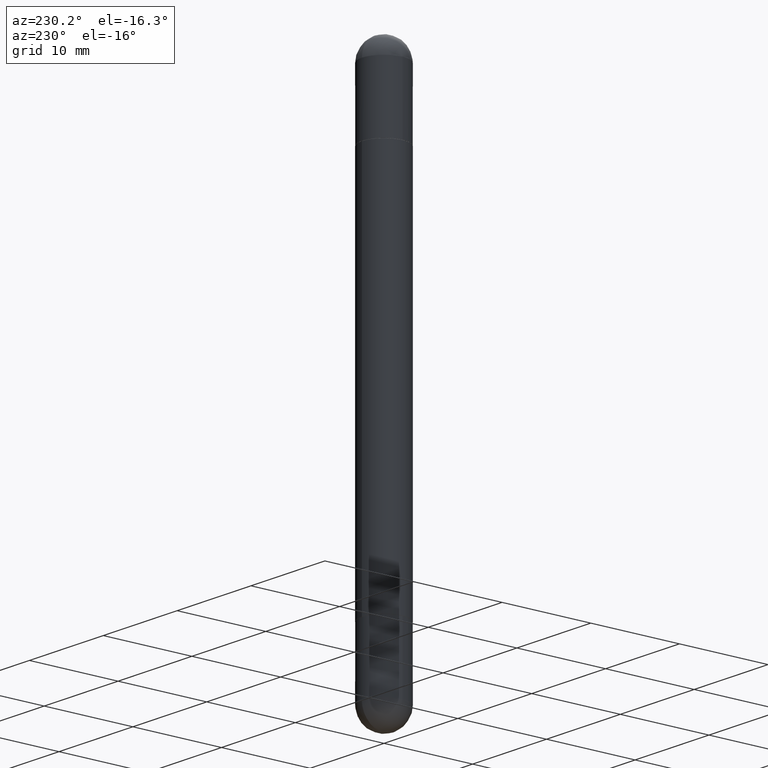
[diagram: clean part render]
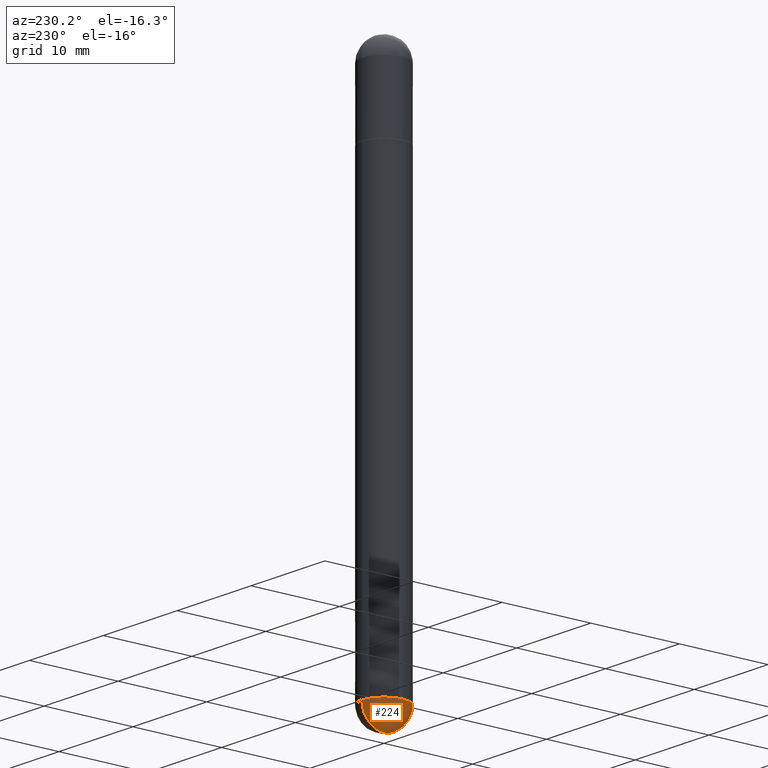
[diagram: same view with one face highlighted and labeled with its STEP entity id]
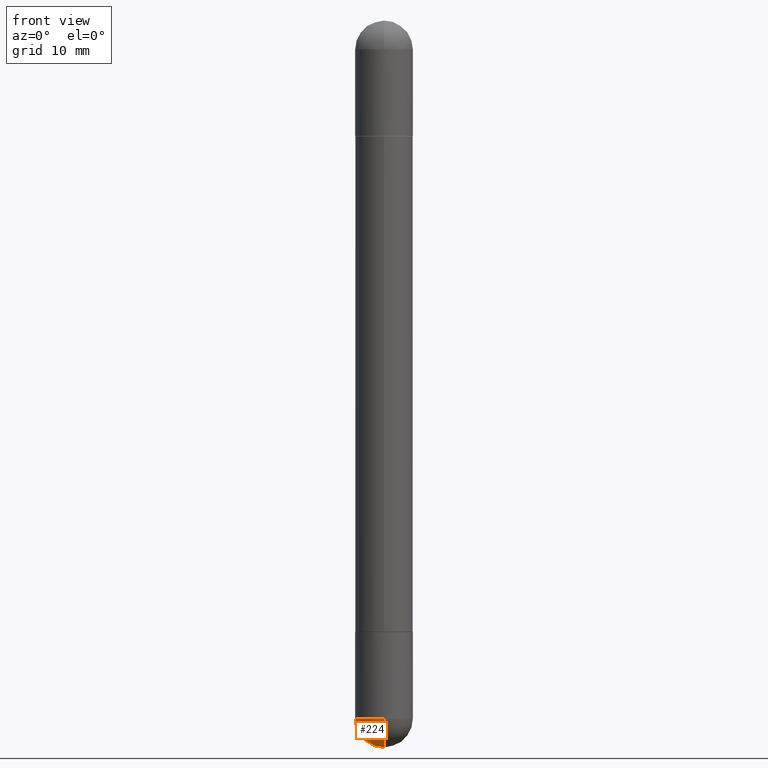
[diagram: same view with one face highlighted and labeled with its STEP entity id]
A machine part, auxiliary view. The second image highlights one B-rep face of the part: STEP entity #224.
A second angle (front view) of the same face is appended — the face is thin or edge-on in the first view.
In plain terms, the highlighted spherical surface has radius 2.5006 mm.
Its self-contained STEP definition (entity closure, byte-faithful):
#19 = AXIS2_PLACEMENT_3D ( 'NONE', #58, #555, #384 ) ;
#58 = CARTESIAN_POINT ( 'NONE',  ( 5.493620098098182533E-29, -8.790367195063598563E-15, -2.381850000000000467 ) ) ;
#95 = ORIENTED_EDGE ( 'NONE', *, *, #300, .F. ) ;
#115 = CARTESIAN_POINT ( 'NONE',  ( 5.824739876012068780E-29, -8.316184826923546689E-15, -2.381850000000000467 ) ) ;
#129 = DIRECTION ( 'NONE',  ( 6.982962677686265922E-15, 1.000000000000000000, -2.774858297271973643E-15 ) ) ;
#138 = CIRCLE ( 'NONE', #494, 0.09845000000000000973 ) ;
#154 = EDGE_LOOP ( 'NONE', ( #172, #431, #242, #95 ) ) ;
#165 = AXIS2_PLACEMENT_3D ( 'NONE', #571, #428, #129 ) ;
#172 = ORIENTED_EDGE ( 'NONE', *, *, #818, .F. ) ;
#224 = ADVANCED_FACE ( 'NONE', ( #383 ), #328, .T. ) ;
#242 = ORIENTED_EDGE ( 'NONE', *, *, #618, .F. ) ;
#258 = DIRECTION ( 'NONE',  ( -2.445468806185136597E-29, 3.491481338843145583E-15, 1.000000000000000000 ) ) ;
#264 = CIRCLE ( 'NONE', #524, 0.09845000000000017626 ) ;
#300 = EDGE_CURVE ( 'NONE', #348, #573, #138, .T. ) ;
#328 = SPHERICAL_SURFACE ( 'NONE', #165, 0.09845000000000017626 ) ;
#340 = AXIS2_PLACEMENT_3D ( 'NONE', #115, #369, #460 ) ;
#342 = CARTESIAN_POINT ( 'NONE',  ( -6.995293233557624958E-16, -0.09845000000000865559, -2.381850000000000023 ) ) ;
#348 = VERTEX_POINT ( 'NONE', #566 ) ;
#352 = CARTESIAN_POINT ( 'NONE',  ( -0.09845000000000000973, -7.101225570921009731E-15, -2.381850000000000467 ) ) ;
#369 = DIRECTION ( 'NONE',  ( -2.445468806185136597E-29, 3.491481338843145583E-15, 1.000000000000000000 ) ) ;
#383 = FACE_OUTER_BOUND ( 'NONE', #154, .T. ) ;
#384 = DIRECTION ( 'NONE',  ( 6.982962677686265922E-15, 1.000000000000000000, 0.000000000000000000 ) ) ;
#411 = CARTESIAN_POINT ( 'NONE',  ( 5.493620098098182533E-29, -8.790367195063598563E-15, -2.381850000000000467 ) ) ;
#428 = DIRECTION ( 'NONE',  ( -1.000000000000000000, 6.982962677686265922E-15, -4.883557194083112901E-29 ) ) ;
#431 = ORIENTED_EDGE ( 'NONE', *, *, #648, .T. ) ;
#460 = DIRECTION ( 'NONE',  ( 1.000000000000000000, -6.982962677686273810E-15, 0.000000000000000000 ) ) ;
#478 = DIRECTION ( 'NONE',  ( -1.000000000000000000, 7.105427357601001070E-15, -4.926315508542082329E-29 ) ) ;
#491 = VERTEX_POINT ( 'NONE', #342 ) ;
#494 = AXIS2_PLACEMENT_3D ( 'NONE', #613, #258, #674 ) ;
#508 = CIRCLE ( 'NONE', #19, 0.09845000000000017626 ) ;
#524 = AXIS2_PLACEMENT_3D ( 'NONE', #411, #478, #726 ) ;
#555 = DIRECTION ( 'NONE',  ( 1.000000000000000000, -6.982962677686265922E-15, 4.883557194083112340E-29 ) ) ;
#566 = CARTESIAN_POINT ( 'NONE',  ( 6.874726756182700483E-16, 0.09844999999999154427, -2.381850000000000911 ) ) ;
#571 = CARTESIAN_POINT ( 'NONE',  ( 5.493620098098182533E-29, -8.790367195063598563E-15, -2.381850000000000467 ) ) ;
#573 = VERTEX_POINT ( 'NONE', #352 ) ;
#599 = VERTEX_POINT ( 'NONE', #717 ) ;
#613 = CARTESIAN_POINT ( 'NONE',  ( 5.824739876012068780E-29, -8.316184826923546689E-15, -2.381850000000000467 ) ) ;
#618 = EDGE_CURVE ( 'NONE', #573, #491, #629, .T. ) ;
#629 = CIRCLE ( 'NONE', #340, 0.09845000000000000973 ) ;
#648 = EDGE_CURVE ( 'NONE', #599, #491, #264, .T. ) ;
#674 = DIRECTION ( 'NONE',  ( 1.000000000000000000, -6.982962677686273810E-15, 0.000000000000000000 ) ) ;
#717 = CARTESIAN_POINT ( 'NONE',  ( 5.738586058125595532E-29, -9.128075209003904434E-15, -2.480300000000001059 ) ) ;
#726 = DIRECTION ( 'NONE',  ( -7.105427357601001070E-15, -1.000000000000000000, 0.000000000000000000 ) ) ;
#818 = EDGE_CURVE ( 'NONE', #599, #348, #508, .T. ) ;